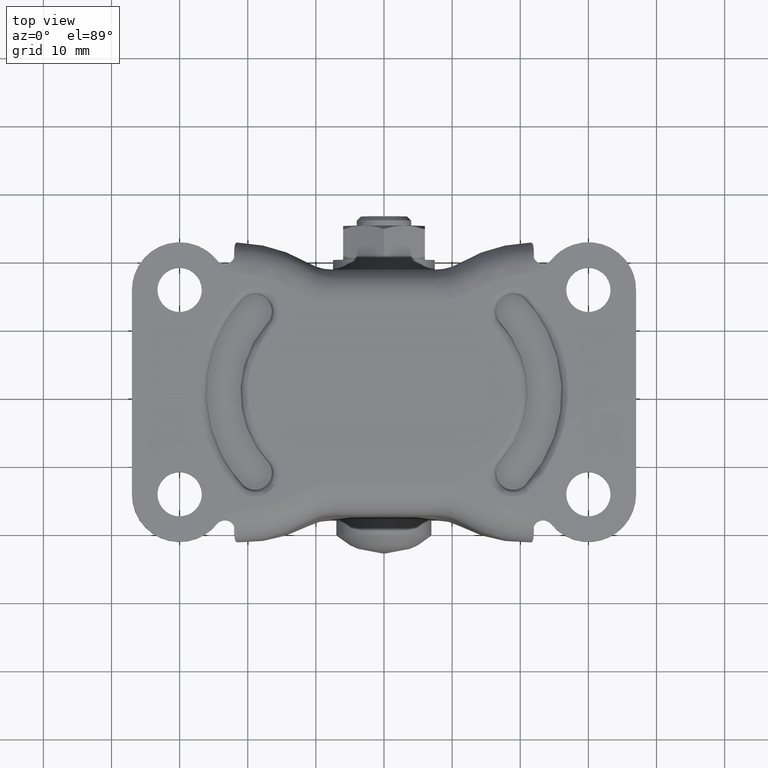
[diagram: clean part render]
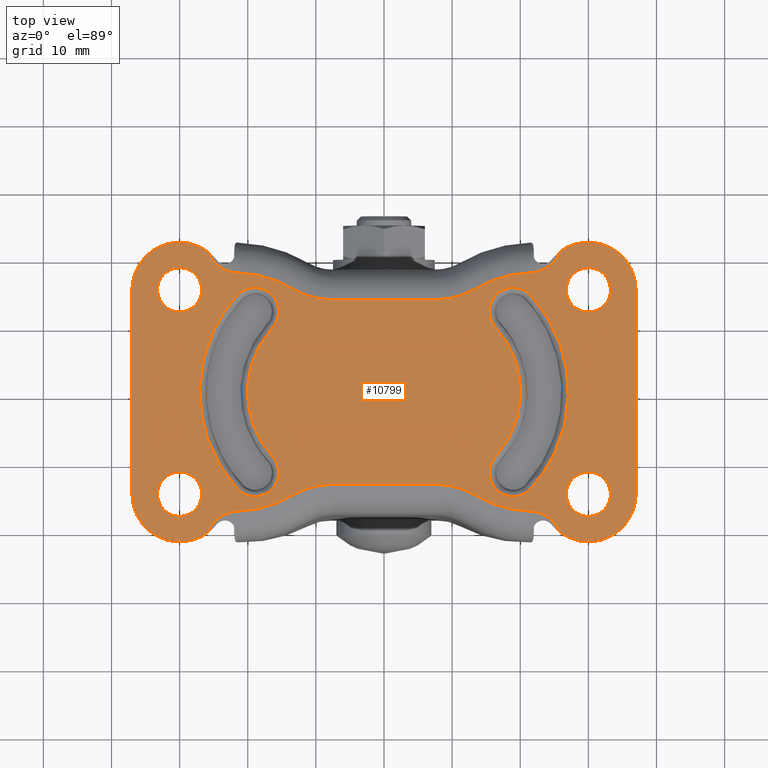
[diagram: same view with one face highlighted and labeled with its STEP entity id]
A machine part, top view. The second image highlights one B-rep face of the part: STEP entity #10799.
In plain terms, the highlighted face is a freeform B-spline surface patch.
Its self-contained STEP definition (entity closure, byte-faithful):
#3071=CARTESIAN_POINT('',(-30.383611262793419,11.772719039336801,-2.484500E-017));
#3072=VERTEX_POINT('',#3071);
#3073=CARTESIAN_POINT('',(-26.750000000000000,14.999999999999821,0.0));
#3074=VERTEX_POINT('',#3073);
#3075=CARTESIAN_POINT('',(-30.383611262793419,11.772719039336794,-2.484500E-017));
#3076=CARTESIAN_POINT('',(-30.192478389029340,11.749999999999824,0.0));
#3077=CARTESIAN_POINT('',(-30.0,11.749999999999821,0.0));
#3078=CARTESIAN_POINT('',(-26.750000000000007,11.749999999999819,0.0));
#3079=CARTESIAN_POINT('',(-26.750000000000000,14.999999999999821,0.0));
#3087=(BOUNDED_CURVE()B_SPLINE_CURVE(2,(#3075,#3076,#3077,#3078,#3079),.UNSPECIFIED.,.F.,.U.)B_SPLINE_CURVE_WITH_KNOTS((3,2,3),(0.229562473498996,0.250000000000000,0.500000000000000),.UNSPECIFIED.)CURVE()GEOMETRIC_REPRESENTATION_ITEM()RATIONAL_B_SPLINE_CURVE((0.956026754155255,0.976055948314143,1.0,0.707106781186547,1.0))REPRESENTATION_ITEM(''));
#3088=EDGE_CURVE('',#3072,#3074,#3087,.T.);
#3090=CARTESIAN_POINT('',(-29.801592246333168,18.243938094859971,-2.081668E-017));
#3091=VERTEX_POINT('',#3090);
#3092=CARTESIAN_POINT('',(-26.750000000000000,14.999999999999821,0.0));
#3093=CARTESIAN_POINT('',(-26.750000000000007,18.057294717106135,0.0));
#3094=CARTESIAN_POINT('',(-29.801592246333161,18.243938094859974,-2.081668E-017));
#3102=(BOUNDED_CURVE()B_SPLINE_CURVE(2,(#3092,#3093,#3094),.UNSPECIFIED.,.F.,.U.)B_SPLINE_CURVE_WITH_KNOTS((3,3),(0.500000000000000,0.739332962222973),.UNSPECIFIED.)CURVE()GEOMETRIC_REPRESENTATION_ITEM()RATIONAL_B_SPLINE_CURVE((1.0,0.719603993305420,0.976072041632492))REPRESENTATION_ITEM(''));
#3103=EDGE_CURVE('',#3074,#3091,#3102,.T.);
#3170=CARTESIAN_POINT('',(-33.250000000000000,14.999999999999821,0.0));
#3171=VERTEX_POINT('',#3170);
#3172=CARTESIAN_POINT('',(-33.250000000000000,14.999999999999821,0.0));
#3173=CARTESIAN_POINT('',(-33.250000000000007,12.113432790944220,0.0));
#3174=CARTESIAN_POINT('',(-30.383611262793416,11.772719039336803,-2.484500E-017));
#3182=(BOUNDED_CURVE()B_SPLINE_CURVE(2,(#3172,#3173,#3174),.UNSPECIFIED.,.F.,.U.)B_SPLINE_CURVE_WITH_KNOTS((3,3),(0.0,0.229562473498997),.UNSPECIFIED.)CURVE()GEOMETRIC_REPRESENTATION_ITEM()RATIONAL_B_SPLINE_CURVE((1.0,0.731050832872404,0.956026754155255))REPRESENTATION_ITEM(''));
#3183=EDGE_CURVE('',#3171,#3072,#3182,.T.);
#3217=CARTESIAN_POINT('',(-29.801592246333165,18.243938094859967,-2.081668E-017));
#3218=CARTESIAN_POINT('',(-29.900703519100531,18.249999999999826,0.0));
#3219=CARTESIAN_POINT('',(-30.0,18.249999999999819,0.0));
#3220=CARTESIAN_POINT('',(-33.249999999999993,18.249999999999826,0.0));
#3221=CARTESIAN_POINT('',(-33.250000000000000,14.999999999999821,0.0));
#3229=(BOUNDED_CURVE()B_SPLINE_CURVE(2,(#3217,#3218,#3219,#3220,#3221),.UNSPECIFIED.,.F.,.U.)B_SPLINE_CURVE_WITH_KNOTS((3,2,3),(0.739332962222974,0.750000000000000,1.0),.UNSPECIFIED.)CURVE()GEOMETRIC_REPRESENTATION_ITEM()RATIONAL_B_SPLINE_CURVE((0.976072041632493,0.987502787881128,1.0,0.707106781186547,1.0))REPRESENTATION_ITEM(''));
#3230=EDGE_CURVE('',#3091,#3171,#3229,.T.);
#3257=CARTESIAN_POINT('',(-30.383611262793419,-18.227280960663020,-2.484500E-017));
#3258=VERTEX_POINT('',#3257);
#3259=CARTESIAN_POINT('',(-26.750000000000000,-15.0,0.0));
#3260=VERTEX_POINT('',#3259);
#3261=CARTESIAN_POINT('',(-30.383611262793419,-18.227280960663016,-2.484500E-017));
#3262=CARTESIAN_POINT('',(-30.192478389029347,-18.250000000000000,0.0));
#3263=CARTESIAN_POINT('',(-30.0,-18.250000000000000,0.0));
#3264=CARTESIAN_POINT('',(-26.750000000000007,-18.250000000000000,0.0));
#3265=CARTESIAN_POINT('',(-26.750000000000000,-15.0,0.0));
#3273=(BOUNDED_CURVE()B_SPLINE_CURVE(2,(#3261,#3262,#3263,#3264,#3265),.UNSPECIFIED.,.F.,.U.)B_SPLINE_CURVE_WITH_KNOTS((3,2,3),(0.229562473498996,0.250000000000000,0.500000000000000),.UNSPECIFIED.)CURVE()GEOMETRIC_REPRESENTATION_ITEM()RATIONAL_B_SPLINE_CURVE((0.956026754155255,0.976055948314143,1.0,0.707106781186547,1.0))REPRESENTATION_ITEM(''));
#3274=EDGE_CURVE('',#3258,#3260,#3273,.T.);
#3276=CARTESIAN_POINT('',(-29.801592246333168,-11.756061905139861,-2.081668E-017));
#3277=VERTEX_POINT('',#3276);
#3278=CARTESIAN_POINT('',(-26.750000000000000,-15.0,0.0));
#3279=CARTESIAN_POINT('',(-26.750000000000007,-11.942705282893685,0.0));
#3280=CARTESIAN_POINT('',(-29.801592246333161,-11.756061905139855,-2.081668E-017));
#3288=(BOUNDED_CURVE()B_SPLINE_CURVE(2,(#3278,#3279,#3280),.UNSPECIFIED.,.F.,.U.)B_SPLINE_CURVE_WITH_KNOTS((3,3),(0.500000000000000,0.739332962222973),.UNSPECIFIED.)CURVE()GEOMETRIC_REPRESENTATION_ITEM()RATIONAL_B_SPLINE_CURVE((1.0,0.719603993305420,0.976072041632492))REPRESENTATION_ITEM(''));
#3289=EDGE_CURVE('',#3260,#3277,#3288,.T.);
#3356=CARTESIAN_POINT('',(-33.250000000000000,-15.0,0.0));
#3357=VERTEX_POINT('',#3356);
#3358=CARTESIAN_POINT('',(-33.250000000000000,-15.0,0.0));
#3359=CARTESIAN_POINT('',(-33.250000000000000,-17.886567209055592,0.0));
#3360=CARTESIAN_POINT('',(-30.383611262793426,-18.227280960663020,-2.484500E-017));
#3368=(BOUNDED_CURVE()B_SPLINE_CURVE(2,(#3358,#3359,#3360),.UNSPECIFIED.,.F.,.U.)B_SPLINE_CURVE_WITH_KNOTS((3,3),(0.0,0.229562473498996),.UNSPECIFIED.)CURVE()GEOMETRIC_REPRESENTATION_ITEM()RATIONAL_B_SPLINE_CURVE((1.0,0.731050832872405,0.956026754155255))REPRESENTATION_ITEM(''));
#3369=EDGE_CURVE('',#3357,#3258,#3368,.T.);
#3403=CARTESIAN_POINT('',(-29.801592246333165,-11.756061905139854,-2.081668E-017));
#3404=CARTESIAN_POINT('',(-29.900703519100531,-11.750000000000002,0.0));
#3405=CARTESIAN_POINT('',(-30.0,-11.750000000000000,0.0));
#3406=CARTESIAN_POINT('',(-33.249999999999993,-11.750000000000004,0.0));
#3407=CARTESIAN_POINT('',(-33.250000000000000,-15.0,0.0));
#3415=(BOUNDED_CURVE()B_SPLINE_CURVE(2,(#3403,#3404,#3405,#3406,#3407),.UNSPECIFIED.,.F.,.U.)B_SPLINE_CURVE_WITH_KNOTS((3,2,3),(0.739332962222974,0.750000000000000,1.0),.UNSPECIFIED.)CURVE()GEOMETRIC_REPRESENTATION_ITEM()RATIONAL_B_SPLINE_CURVE((0.976072041632493,0.987502787881128,1.0,0.707106781186547,1.0))REPRESENTATION_ITEM(''));
#3416=EDGE_CURVE('',#3277,#3357,#3415,.T.);
#3443=CARTESIAN_POINT('',(29.616388737206581,11.772719039336801,-2.484500E-017));
#3444=VERTEX_POINT('',#3443);
#3445=CARTESIAN_POINT('',(33.250000000000000,14.999999999999821,0.0));
#3446=VERTEX_POINT('',#3445);
#3447=CARTESIAN_POINT('',(29.616388737206584,11.772719039336794,-2.484500E-017));
#3448=CARTESIAN_POINT('',(29.807521610970657,11.749999999999824,0.0));
#3449=CARTESIAN_POINT('',(30.0,11.749999999999821,0.0));
#3450=CARTESIAN_POINT('',(33.249999999999993,11.749999999999819,0.0));
#3451=CARTESIAN_POINT('',(33.250000000000000,14.999999999999821,0.0));
#3459=(BOUNDED_CURVE()B_SPLINE_CURVE(2,(#3447,#3448,#3449,#3450,#3451),.UNSPECIFIED.,.F.,.U.)B_SPLINE_CURVE_WITH_KNOTS((3,2,3),(0.229562473498996,0.250000000000000,0.500000000000000),.UNSPECIFIED.)CURVE()GEOMETRIC_REPRESENTATION_ITEM()RATIONAL_B_SPLINE_CURVE((0.956026754155255,0.976055948314143,1.0,0.707106781186547,1.0))REPRESENTATION_ITEM(''));
#3460=EDGE_CURVE('',#3444,#3446,#3459,.T.);
#3462=CARTESIAN_POINT('',(30.198407753666839,18.243938094859971,-2.081668E-017));
#3463=VERTEX_POINT('',#3462);
#3464=CARTESIAN_POINT('',(33.250000000000000,14.999999999999821,0.0));
#3465=CARTESIAN_POINT('',(33.250000000000000,18.057294717106135,0.0));
#3466=CARTESIAN_POINT('',(30.198407753666832,18.243938094859963,-2.081668E-017));
#3474=(BOUNDED_CURVE()B_SPLINE_CURVE(2,(#3464,#3465,#3466),.UNSPECIFIED.,.F.,.U.)B_SPLINE_CURVE_WITH_KNOTS((3,3),(0.500000000000000,0.739332962222973),.UNSPECIFIED.)CURVE()GEOMETRIC_REPRESENTATION_ITEM()RATIONAL_B_SPLINE_CURVE((1.0,0.719603993305420,0.976072041632492))REPRESENTATION_ITEM(''));
#3475=EDGE_CURVE('',#3446,#3463,#3474,.T.);
#3542=CARTESIAN_POINT('',(26.750000000000000,14.999999999999821,0.0));
#3543=VERTEX_POINT('',#3542);
#3544=CARTESIAN_POINT('',(26.750000000000000,14.999999999999821,0.0));
#3545=CARTESIAN_POINT('',(26.749999999999993,12.113432790944220,0.0));
#3546=CARTESIAN_POINT('',(29.616388737206581,11.772719039336804,-2.484500E-017));
#3554=(BOUNDED_CURVE()B_SPLINE_CURVE(2,(#3544,#3545,#3546),.UNSPECIFIED.,.F.,.U.)B_SPLINE_CURVE_WITH_KNOTS((3,3),(0.0,0.229562473498996),.UNSPECIFIED.)CURVE()GEOMETRIC_REPRESENTATION_ITEM()RATIONAL_B_SPLINE_CURVE((1.0,0.731050832872404,0.956026754155255))REPRESENTATION_ITEM(''));
#3555=EDGE_CURVE('',#3543,#3444,#3554,.T.);
#3589=CARTESIAN_POINT('',(30.198407753666832,18.243938094859971,-2.081668E-017));
#3590=CARTESIAN_POINT('',(30.099296480899472,18.249999999999815,0.0));
#3591=CARTESIAN_POINT('',(30.0,18.249999999999819,0.0));
#3592=CARTESIAN_POINT('',(26.750000000000007,18.249999999999826,0.0));
#3593=CARTESIAN_POINT('',(26.750000000000000,14.999999999999821,0.0));
#3601=(BOUNDED_CURVE()B_SPLINE_CURVE(2,(#3589,#3590,#3591,#3592,#3593),.UNSPECIFIED.,.F.,.U.)B_SPLINE_CURVE_WITH_KNOTS((3,2,3),(0.739332962222974,0.750000000000000,1.0),.UNSPECIFIED.)CURVE()GEOMETRIC_REPRESENTATION_ITEM()RATIONAL_B_SPLINE_CURVE((0.976072041632493,0.987502787881128,1.0,0.707106781186547,1.0))REPRESENTATION_ITEM(''));
#3602=EDGE_CURVE('',#3463,#3543,#3601,.T.);
#3629=CARTESIAN_POINT('',(29.616388737206581,-18.227280960663020,-2.484500E-017));
#3630=VERTEX_POINT('',#3629);
#3631=CARTESIAN_POINT('',(33.250000000000000,-15.0,0.0));
#3632=VERTEX_POINT('',#3631);
#3633=CARTESIAN_POINT('',(29.616388737206581,-18.227280960663023,-2.484500E-017));
#3634=CARTESIAN_POINT('',(29.807521610970660,-18.249999999999996,0.0));
#3635=CARTESIAN_POINT('',(30.0,-18.250000000000000,0.0));
#3636=CARTESIAN_POINT('',(33.249999999999993,-18.250000000000000,0.0));
#3637=CARTESIAN_POINT('',(33.250000000000000,-15.0,0.0));
#3645=(BOUNDED_CURVE()B_SPLINE_CURVE(2,(#3633,#3634,#3635,#3636,#3637),.UNSPECIFIED.,.F.,.U.)B_SPLINE_CURVE_WITH_KNOTS((3,2,3),(0.229562473498996,0.250000000000000,0.500000000000000),.UNSPECIFIED.)CURVE()GEOMETRIC_REPRESENTATION_ITEM()RATIONAL_B_SPLINE_CURVE((0.956026754155255,0.976055948314143,1.0,0.707106781186547,1.0))REPRESENTATION_ITEM(''));
#3646=EDGE_CURVE('',#3630,#3632,#3645,.T.);
#3648=CARTESIAN_POINT('',(30.198407753666839,-11.756061905139850,-2.081668E-017));
#3649=VERTEX_POINT('',#3648);
#3650=CARTESIAN_POINT('',(33.250000000000000,-15.0,0.0));
#3651=CARTESIAN_POINT('',(33.250000000000000,-11.942705282893685,0.0));
#3652=CARTESIAN_POINT('',(30.198407753666832,-11.756061905139855,-2.081668E-017));
#3660=(BOUNDED_CURVE()B_SPLINE_CURVE(2,(#3650,#3651,#3652),.UNSPECIFIED.,.F.,.U.)B_SPLINE_CURVE_WITH_KNOTS((3,3),(0.500000000000000,0.739332962222973),.UNSPECIFIED.)CURVE()GEOMETRIC_REPRESENTATION_ITEM()RATIONAL_B_SPLINE_CURVE((1.0,0.719603993305420,0.976072041632492))REPRESENTATION_ITEM(''));
#3661=EDGE_CURVE('',#3632,#3649,#3660,.T.);
#3728=CARTESIAN_POINT('',(26.750000000000000,-15.0,0.0));
#3729=VERTEX_POINT('',#3728);
#3730=CARTESIAN_POINT('',(26.750000000000000,-15.0,0.0));
#3731=CARTESIAN_POINT('',(26.749999999999993,-17.886567209055599,0.0));
#3732=CARTESIAN_POINT('',(29.616388737206584,-18.227280960663023,-2.484500E-017));
#3740=(BOUNDED_CURVE()B_SPLINE_CURVE(2,(#3730,#3731,#3732),.UNSPECIFIED.,.F.,.U.)B_SPLINE_CURVE_WITH_KNOTS((3,3),(0.0,0.229562473498996),.UNSPECIFIED.)CURVE()GEOMETRIC_REPRESENTATION_ITEM()RATIONAL_B_SPLINE_CURVE((1.0,0.731050832872404,0.956026754155255))REPRESENTATION_ITEM(''));
#3741=EDGE_CURVE('',#3729,#3630,#3740,.T.);
#3775=CARTESIAN_POINT('',(30.198407753666832,-11.756061905139855,-2.081668E-017));
#3776=CARTESIAN_POINT('',(30.099296480899472,-11.750000000000004,0.0));
#3777=CARTESIAN_POINT('',(30.0,-11.750000000000000,0.0));
#3778=CARTESIAN_POINT('',(26.750000000000007,-11.750000000000004,0.0));
#3779=CARTESIAN_POINT('',(26.750000000000000,-15.0,0.0));
#3787=(BOUNDED_CURVE()B_SPLINE_CURVE(2,(#3775,#3776,#3777,#3778,#3779),.UNSPECIFIED.,.F.,.U.)B_SPLINE_CURVE_WITH_KNOTS((3,2,3),(0.739332962222974,0.750000000000000,1.0),.UNSPECIFIED.)CURVE()GEOMETRIC_REPRESENTATION_ITEM()RATIONAL_B_SPLINE_CURVE((0.976072041632493,0.987502787881128,1.0,0.707106781186547,1.0))REPRESENTATION_ITEM(''));
#3788=EDGE_CURVE('',#3649,#3729,#3787,.T.);
#6193=CARTESIAN_POINT('',(-25.811329888295749,20.608479535071201,0.0));
#6194=VERTEX_POINT('',#6193);
#6208=CARTESIAN_POINT('',(-21.484265850218950,17.492088912298900,0.0));
#6209=VERTEX_POINT('',#6208);
#6210=CARTESIAN_POINT('',(-21.484265850218950,17.492088912298900,0.0));
#6211=CARTESIAN_POINT('',(-21.603383213129010,17.495743704170309,0.0));
#6212=CARTESIAN_POINT('',(-21.722158548124909,17.503726703638581,0.0));
#6213=CARTESIAN_POINT('',(-21.959026405725790,17.528333382634109,0.0));
#6214=CARTESIAN_POINT('',(-22.077092583931659,17.544984488697281,0.0));
#6215=CARTESIAN_POINT('',(-22.426547924071730,17.607248886891320,0.0));
#6216=CARTESIAN_POINT('',(-22.654490383674279,17.665208486618280,0.0));
#6217=CARTESIAN_POINT('',(-23.100443050177020,17.813624331418350,0.0));
#6218=CARTESIAN_POINT('',(-23.318518422526392,17.904103882154502,0.0));
#6219=CARTESIAN_POINT('',(-23.743908252633570,18.119320720896820,0.0));
#6220=CARTESIAN_POINT('',(-23.945852131464530,18.241335012722860,0.0));
#6221=CARTESIAN_POINT('',(-24.328809851242990,18.513408842431360,0.0));
#6222=CARTESIAN_POINT('',(-24.509825656312628,18.663465748484452,0.0));
#6223=CARTESIAN_POINT('',(-24.722437996194909,18.869337163501420,0.0));
#6224=CARTESIAN_POINT('',(-24.764273718392921,18.911431652881980,0.0));
#6225=CARTESIAN_POINT('',(-24.846540707122859,18.997502534817350,0.0));
#6226=CARTESIAN_POINT('',(-24.886905566092359,19.041417946322468,0.0));
#6227=CARTESIAN_POINT('',(-25.004800353540158,19.174808146622329,0.0));
#6228=CARTESIAN_POINT('',(-25.079486635391621,19.266286797667259,0.0));
#6229=CARTESIAN_POINT('',(-25.291991180504471,19.548263164655431,0.0));
#6230=CARTESIAN_POINT('',(-25.418324794318519,19.746255839746791,0.0));
#6231=CARTESIAN_POINT('',(-25.584271886973191,20.058615912029079,0.0));
#6232=CARTESIAN_POINT('',(-25.635645089158231,20.165308835004360,0.0));
#6233=CARTESIAN_POINT('',(-25.730187854273488,20.384048430876700,0.0));
#6234=CARTESIAN_POINT('',(-25.773072197983112,20.495473449877331,0.0));
#6235=CARTESIAN_POINT('',(-25.811329888295749,20.608479535071201,0.0));
#6236=B_SPLINE_CURVE_WITH_KNOTS('',3,(#6210,#6211,#6212,#6213,#6214,#6215,#6216,#6217,#6218,#6219,#6220,#6221,#6222,#6223,#6224,#6225,#6226,#6227,#6228,#6229,#6230,#6231,#6232,#6233,#6234,#6235),.UNSPECIFIED.,.F.,.U.,(4,2,2,2,2,2,2,2,2,2,2,2,4),(0.0,0.062499999999999,0.124999999999998,0.249999999999997,0.374999999999996,0.499999999999996,0.624999999999995,0.656249999999995,0.687499999999995,0.749999999999997,0.875000000000000,0.937500000000000,1.0),.UNSPECIFIED.);
#6237=EDGE_CURVE('',#6209,#6194,#6236,.T.);
#6362=CARTESIAN_POINT('',(-13.418852226916959,15.145858966433151,0.0));
#6363=VERTEX_POINT('',#6362);
#6393=CARTESIAN_POINT('',(-13.418852226916959,15.145858966433151,0.0));
#6394=CARTESIAN_POINT('',(-17.148994104475438,17.359072905651573,0.0));
#6395=CARTESIAN_POINT('',(-21.484265850218950,17.492088912298929,0.0));
#6403=(BOUNDED_CURVE()B_SPLINE_CURVE(2,(#6393,#6394,#6395),.UNSPECIFIED.,.F.,.U.)CURVE()GEOMETRIC_REPRESENTATION_ITEM()QUASI_UNIFORM_CURVE()RATIONAL_B_SPLINE_CURVE((1.0,0.968312146698987,1.0))REPRESENTATION_ITEM(''));
#6404=EDGE_CURVE('',#6363,#6209,#6403,.T.);
#6426=CARTESIAN_POINT('',(-7.601734732925700,13.550000000000001,0.0));
#6427=VERTEX_POINT('',#6426);
#6457=CARTESIAN_POINT('',(-7.601734732925700,13.550000000000001,0.0));
#6458=CARTESIAN_POINT('',(-10.729196454978963,13.549999119394657,0.0));
#6459=CARTESIAN_POINT('',(-13.418852226916970,15.145858966433151,0.0));
#6467=(BOUNDED_CURVE()B_SPLINE_CURVE(2,(#6457,#6458,#6459),.UNSPECIFIED.,.F.,.U.)CURVE()GEOMETRIC_REPRESENTATION_ITEM()QUASI_UNIFORM_CURVE()RATIONAL_B_SPLINE_CURVE((1.0,0.964368245974227,1.0))REPRESENTATION_ITEM(''));
#6468=EDGE_CURVE('',#6427,#6363,#6467,.T.);
#6487=CARTESIAN_POINT('',(7.601737942846899,13.550000000000001,0.0));
#6488=VERTEX_POINT('',#6487);
#6510=CARTESIAN_POINT('',(7.601737942846899,13.550000000000001,0.0));
#6511=CARTESIAN_POINT('',(-7.601734732925700,13.550000000000001,0.0));
#6512=QUASI_UNIFORM_CURVE('',1,(#6510,#6511),.UNSPECIFIED.,.F.,.U.);
#6513=EDGE_CURVE('',#6488,#6427,#6512,.T.);
#6535=CARTESIAN_POINT('',(13.418852226916821,15.145858966433151,0.0));
#6536=VERTEX_POINT('',#6535);
#6566=CARTESIAN_POINT('',(13.418852226916830,15.145858966433130,0.0));
#6567=CARTESIAN_POINT('',(10.729197939147538,13.549999999999999,0.0));
#6568=CARTESIAN_POINT('',(7.601737942846899,13.550000000000001,0.0));
#6576=(BOUNDED_CURVE()B_SPLINE_CURVE(2,(#6566,#6567,#6568),.UNSPECIFIED.,.F.,.U.)CURVE()GEOMETRIC_REPRESENTATION_ITEM()QUASI_UNIFORM_CURVE()RATIONAL_B_SPLINE_CURVE((1.0,0.964368283221072,1.0))REPRESENTATION_ITEM(''));
#6577=EDGE_CURVE('',#6536,#6488,#6576,.T.);
#6599=CARTESIAN_POINT('',(21.484266556458799,17.492088933967949,0.0));
#6600=VERTEX_POINT('',#6599);
#6630=CARTESIAN_POINT('',(21.484266556458810,17.492088933967960,0.0));
#6631=CARTESIAN_POINT('',(17.148994428516772,17.359073097915818,0.0));
#6632=CARTESIAN_POINT('',(13.418852226916830,15.145858966433151,0.0));
#6640=(BOUNDED_CURVE()B_SPLINE_CURVE(2,(#6630,#6631,#6632),.UNSPECIFIED.,.F.,.U.)CURVE()GEOMETRIC_REPRESENTATION_ITEM()QUASI_UNIFORM_CURVE()RATIONAL_B_SPLINE_CURVE((1.0,0.968312141452394,1.0))REPRESENTATION_ITEM(''));
#6641=EDGE_CURVE('',#6600,#6536,#6640,.T.);
#6791=CARTESIAN_POINT('',(25.811331118543048,20.608480453876250,0.0));
#6792=VERTEX_POINT('',#6791);
#6793=CARTESIAN_POINT('',(25.811331118543048,20.608480453876250,0.0));
#6794=CARTESIAN_POINT('',(25.734876977442362,20.382649012749368,0.0));
#6795=CARTESIAN_POINT('',(25.641106915643711,20.166089080188339,0.0));
#6796=CARTESIAN_POINT('',(25.420880339941942,19.750578404918659,0.0));
#6797=CARTESIAN_POINT('',(25.294410312498130,19.551616285075340,0.0));
#6798=CARTESIAN_POINT('',(25.115537968417339,19.314087338812651,0.0));
#6799=CARTESIAN_POINT('',(25.078723926748921,19.267161662336310,0.0));
#6800=CARTESIAN_POINT('',(25.003649805187312,19.175234823182180,0.0));
#6801=CARTESIAN_POINT('',(24.965313191825921,19.130129615385140,0.0));
#6802=CARTESIAN_POINT('',(24.847949080114962,18.997340984830480,0.0));
#6803=CARTESIAN_POINT('',(24.766570856343151,18.912180748537359,0.0));
#6804=CARTESIAN_POINT('',(24.513248478083661,18.666561803001930,0.0));
#6805=CARTESIAN_POINT('',(24.332169380936271,18.515908221766001,0.0));
#6806=CARTESIAN_POINT('',(24.090479523084781,18.344057723574419,0.0));
#6807=CARTESIAN_POINT('',(24.041275612655689,18.310454353578699,0.0));
#6808=CARTESIAN_POINT('',(23.941788957687649,18.245237458435010,0.0));
#6809=CARTESIAN_POINT('',(23.891575919974059,18.213663554685720,0.0));
#6810=CARTESIAN_POINT('',(23.739555270228198,18.121984698522461,0.0));
#6811=CARTESIAN_POINT('',(23.636368179054841,18.064918069597869,0.0));
#6812=CARTESIAN_POINT('',(23.321428206761141,17.905564847510441,0.0));
#6813=CARTESIAN_POINT('',(23.104326609287799,17.815058882302889,0.0));
#6814=CARTESIAN_POINT('',(22.824019945166871,17.721594151849452,0.0));
#6815=CARTESIAN_POINT('',(22.767509731892410,17.703889871680090,0.0));
#6816=CARTESIAN_POINT('',(22.653581710271371,17.670480303094401,0.0));
#6817=CARTESIAN_POINT('',(22.596074910321398,17.654754681873420,0.0));
#6818=CARTESIAN_POINT('',(22.423231268830211,17.610877843354650,0.0));
#6819=CARTESIAN_POINT('',(22.307360042902008,17.585945270539948,0.0));
#6820=CARTESIAN_POINT('',(21.957853867196420,17.523875537383930,0.0));
#6821=CARTESIAN_POINT('',(21.722337256960952,17.499393475028409,0.0));
#6822=CARTESIAN_POINT('',(21.484266556458799,17.492088933967949,0.0));
#6823=B_SPLINE_CURVE_WITH_KNOTS('',3,(#6793,#6794,#6795,#6796,#6797,#6798,#6799,#6800,#6801,#6802,#6803,#6804,#6805,#6806,#6807,#6808,#6809,#6810,#6811,#6812,#6813,#6814,#6815,#6816,#6817,#6818,#6819,#6820,#6821,#6822),.UNSPECIFIED.,.F.,.U.,(4,2,2,2,2,2,2,2,2,2,2,2,2,2,4),(0.0,0.124999999999998,0.249999999999996,0.281249999999996,0.312499999999996,0.374999999999997,0.499999999999996,0.531249999999995,0.562499999999995,0.624999999999994,0.749999999999993,0.781249999999994,0.812499999999994,0.874999999999995,1.0),.UNSPECIFIED.);
#6824=EDGE_CURVE('',#6792,#6600,#6823,.T.);
#6971=CARTESIAN_POINT('',(25.811331118543048,-20.608480453876250,0.0));
#6972=VERTEX_POINT('',#6971);
#6986=CARTESIAN_POINT('',(21.484266556458799,-17.492088933967949,0.0));
#6987=VERTEX_POINT('',#6986);
#6988=CARTESIAN_POINT('',(21.484266556458799,-17.492088933967949,0.0));
#6989=CARTESIAN_POINT('',(21.603383943726929,-17.495743721577171,0.0));
#6990=CARTESIAN_POINT('',(21.722159303134479,-17.503726718498140,0.0));
#6991=CARTESIAN_POINT('',(21.959027209664480,-17.528333395837560,0.0));
#6992=CARTESIAN_POINT('',(22.077093411812161,-17.544984502735652,0.0));
#6993=CARTESIAN_POINT('',(22.426548822570378,-17.607248908321541,0.0));
#6994=CARTESIAN_POINT('',(22.654491328067870,-17.665208519481642,0.0));
#6995=CARTESIAN_POINT('',(23.100444083825561,-17.813624400641419,0.0));
#6996=CARTESIAN_POINT('',(23.318519505974098,-17.904103979549479,0.0));
#6997=CARTESIAN_POINT('',(23.743909406537679,-18.119320877380790,0.0));
#6998=CARTESIAN_POINT('',(23.945853317371650,-18.241335204384431,0.0));
#6999=CARTESIAN_POINT('',(24.328811093924099,-18.513409116691889,0.0));
#7000=CARTESIAN_POINT('',(24.509826923781059,-18.663466070144182,0.0));
#7001=CARTESIAN_POINT('',(24.722439288928790,-18.869337553738941,0.0));
#7002=CARTESIAN_POINT('',(24.764275015890259,-18.911432057306950,0.0));
#7003=CARTESIAN_POINT('',(24.846542013520210,-18.997502968628542,0.0));
#7004=CARTESIAN_POINT('',(24.886906873620092,-19.041418392077119,0.0));
#7005=CARTESIAN_POINT('',(25.004801665520631,-19.174808630917539,0.0));
#7006=CARTESIAN_POINT('',(25.079487949067769,-19.266287308717420,0.0));
#7007=CARTESIAN_POINT('',(25.291992495058700,-19.548263759398719,0.0));
#7008=CARTESIAN_POINT('',(25.418326103914250,-19.746256494807980,0.0));
#7009=CARTESIAN_POINT('',(25.584273178278210,-20.058616666038919,0.0));
#7010=CARTESIAN_POINT('',(25.635646372542919,-20.165309623419571,0.0));
#7011=CARTESIAN_POINT('',(25.730189117493509,-20.384049291408420,0.0));
#7012=CARTESIAN_POINT('',(25.773073444899939,-20.495474337417420,0.0));
#7013=CARTESIAN_POINT('',(25.811331118543048,-20.608480453876250,0.0));
#7014=B_SPLINE_CURVE_WITH_KNOTS('',3,(#6988,#6989,#6990,#6991,#6992,#6993,#6994,#6995,#6996,#6997,#6998,#6999,#7000,#7001,#7002,#7003,#7004,#7005,#7006,#7007,#7008,#7009,#7010,#7011,#7012,#7013),.UNSPECIFIED.,.F.,.U.,(4,2,2,2,2,2,2,2,2,2,2,2,4),(0.0,0.062500000000000,0.125000000000001,0.250000000000000,0.374999999999999,0.499999999999998,0.624999999999996,0.656249999999996,0.687499999999995,0.749999999999996,0.874999999999998,0.937499999999999,1.0),.UNSPECIFIED.);
#7015=EDGE_CURVE('',#6987,#6972,#7014,.T.);
#7140=CARTESIAN_POINT('',(13.418852226916860,-15.145858966433151,0.0));
#7141=VERTEX_POINT('',#7140);
#7171=CARTESIAN_POINT('',(13.418852226916851,-15.145858966433160,0.0));
#7172=CARTESIAN_POINT('',(17.148994428516790,-17.359073097915825,0.0));
#7173=CARTESIAN_POINT('',(21.484266556458799,-17.492088933967960,0.0));
#7181=(BOUNDED_CURVE()B_SPLINE_CURVE(2,(#7171,#7172,#7173),.UNSPECIFIED.,.F.,.U.)CURVE()GEOMETRIC_REPRESENTATION_ITEM()QUASI_UNIFORM_CURVE()RATIONAL_B_SPLINE_CURVE((1.0,0.968312141452394,1.0))REPRESENTATION_ITEM(''));
#7182=EDGE_CURVE('',#7141,#6987,#7181,.T.);
#7204=CARTESIAN_POINT('',(7.601734732926101,-13.550000000000001,0.0));
#7205=VERTEX_POINT('',#7204);
#7235=CARTESIAN_POINT('',(7.601734732926101,-13.550000000000001,0.0));
#7236=CARTESIAN_POINT('',(10.729196454979085,-13.549999119394796,0.0));
#7237=CARTESIAN_POINT('',(13.418852226916860,-15.145858966433151,0.0));
#7245=(BOUNDED_CURVE()B_SPLINE_CURVE(2,(#7235,#7236,#7237),.UNSPECIFIED.,.F.,.U.)CURVE()GEOMETRIC_REPRESENTATION_ITEM()QUASI_UNIFORM_CURVE()RATIONAL_B_SPLINE_CURVE((1.0,0.964368245974233,1.0))REPRESENTATION_ITEM(''));
#7246=EDGE_CURVE('',#7205,#7141,#7245,.T.);
#7265=CARTESIAN_POINT('',(-7.601737942847009,-13.550000000000001,0.0));
#7266=VERTEX_POINT('',#7265);
#7288=CARTESIAN_POINT('',(-7.601737942847009,-13.550000000000001,0.0));
#7289=CARTESIAN_POINT('',(7.601734732926101,-13.550000000000001,0.0));
#7290=QUASI_UNIFORM_CURVE('',1,(#7288,#7289),.UNSPECIFIED.,.F.,.U.);
#7291=EDGE_CURVE('',#7266,#7205,#7290,.T.);
#7313=CARTESIAN_POINT('',(-13.418852226916959,-15.145858966433151,0.0));
#7314=VERTEX_POINT('',#7313);
#7344=CARTESIAN_POINT('',(-13.418852226916959,-15.145858966433151,0.0));
#7345=CARTESIAN_POINT('',(-10.729197939147662,-13.550000000000001,0.0));
#7346=CARTESIAN_POINT('',(-7.601737942847009,-13.550000000000001,0.0));
#7354=(BOUNDED_CURVE()B_SPLINE_CURVE(2,(#7344,#7345,#7346),.UNSPECIFIED.,.F.,.U.)CURVE()GEOMETRIC_REPRESENTATION_ITEM()QUASI_UNIFORM_CURVE()RATIONAL_B_SPLINE_CURVE((1.0,0.964368283221071,1.0))REPRESENTATION_ITEM(''));
#7355=EDGE_CURVE('',#7314,#7266,#7354,.T.);
#7377=CARTESIAN_POINT('',(-21.484265850218950,-17.492088912298900,0.0));
#7378=VERTEX_POINT('',#7377);
#7408=CARTESIAN_POINT('',(-21.484265850218950,-17.492088912298929,0.0));
#7409=CARTESIAN_POINT('',(-17.148994104475438,-17.359072905651573,0.0));
#7410=CARTESIAN_POINT('',(-13.418852226916959,-15.145858966433151,0.0));
#7418=(BOUNDED_CURVE()B_SPLINE_CURVE(2,(#7408,#7409,#7410),.UNSPECIFIED.,.F.,.U.)CURVE()GEOMETRIC_REPRESENTATION_ITEM()QUASI_UNIFORM_CURVE()RATIONAL_B_SPLINE_CURVE((1.0,0.968312146698987,1.0))REPRESENTATION_ITEM(''));
#7419=EDGE_CURVE('',#7378,#7314,#7418,.T.);
#7569=CARTESIAN_POINT('',(-25.811329888295749,-20.608479535071250,0.0));
#7570=VERTEX_POINT('',#7569);
#7571=CARTESIAN_POINT('',(-25.811329888295749,-20.608479535071250,0.0));
#7572=CARTESIAN_POINT('',(-25.734875713854318,-20.382648156340611,0.0));
#7573=CARTESIAN_POINT('',(-25.641105634649499,-20.166088300031941,0.0));
#7574=CARTESIAN_POINT('',(-25.420879030768120,-19.750577748485430,0.0));
#7575=CARTESIAN_POINT('',(-25.294408995936649,-19.551615685957540,0.0));
#7576=CARTESIAN_POINT('',(-25.115536649204198,-19.314086806601740,0.0));
#7577=CARTESIAN_POINT('',(-25.078722609707292,-19.267161146312340,0.0));
#7578=CARTESIAN_POINT('',(-25.003648492959591,-19.175234338055461,0.0));
#7579=CARTESIAN_POINT('',(-24.965311882367470,-19.130129145243590,0.0));
#7580=CARTESIAN_POINT('',(-24.847947779971371,-18.997340558344000,0.0));
#7581=CARTESIAN_POINT('',(-24.766569563748771,-18.912180349424268,0.0));
#7582=CARTESIAN_POINT('',(-24.513247211662598,-18.666561481368099,0.0));
#7583=CARTESIAN_POINT('',(-24.332168136628979,-18.515907945640510,0.0));
#7584=CARTESIAN_POINT('',(-24.090478311309472,-18.344057497655331,0.0));
#7585=CARTESIAN_POINT('',(-24.041274407140609,-18.310454137071449,0.0));
#7586=CARTESIAN_POINT('',(-23.941787769692130,-18.245237262911701,0.0));
#7587=CARTESIAN_POINT('',(-23.891574740912670,-18.213663369156659,0.0));
#7588=CARTESIAN_POINT('',(-23.739554118457860,-18.121984541565510,0.0));
#7589=CARTESIAN_POINT('',(-23.636367046128338,-18.064917929812388,0.0));
#7590=CARTESIAN_POINT('',(-23.321427132112831,-17.905564754090310,0.0));
#7591=CARTESIAN_POINT('',(-23.104325575800409,-17.815058812979139,0.0));
#7592=CARTESIAN_POINT('',(-22.824018965707481,-17.721594104809139,0.0));
#7593=CARTESIAN_POINT('',(-22.767508763369111,-17.703889828700390,0.0));
#7594=CARTESIAN_POINT('',(-22.653580763879969,-17.670480267444191,0.0));
#7595=CARTESIAN_POINT('',(-22.596073975387821,-17.654754649569409,0.0));
#7596=CARTESIAN_POINT('',(-22.423230369678219,-17.610877820085719,0.0));
#7597=CARTESIAN_POINT('',(-22.307359167688482,-17.585945251506288,0.0));
#7598=CARTESIAN_POINT('',(-21.957853064023229,-17.523875525940209,0.0));
#7599=CARTESIAN_POINT('',(-21.722336502109201,-17.499393461880022,0.0));
#7600=CARTESIAN_POINT('',(-21.484265850218950,-17.492088912298900,0.0));
#7601=B_SPLINE_CURVE_WITH_KNOTS('',3,(#7571,#7572,#7573,#7574,#7575,#7576,#7577,#7578,#7579,#7580,#7581,#7582,#7583,#7584,#7585,#7586,#7587,#7588,#7589,#7590,#7591,#7592,#7593,#7594,#7595,#7596,#7597,#7598,#7599,#7600),.UNSPECIFIED.,.F.,.U.,(4,2,2,2,2,2,2,2,2,2,2,2,2,2,4),(0.0,0.124999999999999,0.249999999999998,0.281249999999997,0.312499999999996,0.374999999999995,0.499999999999994,0.531249999999993,0.562499999999993,0.624999999999994,0.749999999999997,0.781249999999997,0.812499999999997,0.874999999999997,1.0),.UNSPECIFIED.);
#7602=EDGE_CURVE('',#7570,#7378,#7601,.T.);
#8636=CARTESIAN_POINT('',(21.524005649238550,14.209292445247200,0.0));
#8637=VERTEX_POINT('',#8636);
#8651=CARTESIAN_POINT('',(16.369762432825699,9.472861630164800,0.0));
#8652=VERTEX_POINT('',#8651);
#8653=CARTESIAN_POINT('',(16.369762432825699,9.472861630164800,0.0));
#8654=CARTESIAN_POINT('',(14.001546984252277,12.049983200665141,0.0));
#8655=CARTESIAN_POINT('',(16.578668592458701,14.418198608206341,0.0));
#8656=CARTESIAN_POINT('',(19.155790200665123,16.786414015747546,0.0));
#8657=CARTESIAN_POINT('',(21.524005649238550,14.209292445247200,0.0));
#8665=(BOUNDED_CURVE()B_SPLINE_CURVE(2,(#8653,#8654,#8655,#8656,#8657),.UNSPECIFIED.,.F.,.U.)B_SPLINE_CURVE_WITH_KNOTS((3,2,3),(0.0,0.500000000000000,1.0),.UNSPECIFIED.)CURVE()GEOMETRIC_REPRESENTATION_ITEM()RATIONAL_B_SPLINE_CURVE((1.0,0.707106781186548,1.0,0.707106781186548,1.0))REPRESENTATION_ITEM(''));
#8666=EDGE_CURVE('',#8652,#8637,#8665,.T.);
#8718=CARTESIAN_POINT('',(16.369762345374600,-9.472861642972520,0.0));
#8719=VERTEX_POINT('',#8718);
#8749=CARTESIAN_POINT('',(16.369762345374600,-9.472861642972520,0.0));
#8750=CARTESIAN_POINT('',(25.074736581095831,-0.000000046584941,0.0));
#8751=CARTESIAN_POINT('',(16.369762432825699,9.472861630164795,0.0));
#8759=(BOUNDED_CURVE()B_SPLINE_CURVE(2,(#8749,#8750,#8751),.UNSPECIFIED.,.F.,.U.)CURVE()GEOMETRIC_REPRESENTATION_ITEM()QUASI_UNIFORM_CURVE()RATIONAL_B_SPLINE_CURVE((1.0,0.736320457829730,1.0))REPRESENTATION_ITEM(''));
#8760=EDGE_CURVE('',#8719,#8652,#8759,.T.);
#8784=CARTESIAN_POINT('',(21.524005556400599,-14.209292546274600,0.0));
#8785=VERTEX_POINT('',#8784);
#8801=CARTESIAN_POINT('',(21.524005649238550,14.209292445247200,0.0));
#8802=CARTESIAN_POINT('',(34.581466893048088,-0.000000093169869,0.0));
#8803=CARTESIAN_POINT('',(21.524005556400610,-14.209292546274609,0.0));
#8811=(BOUNDED_CURVE()B_SPLINE_CURVE(2,(#8801,#8802,#8803),.UNSPECIFIED.,.F.,.U.)CURVE()GEOMETRIC_REPRESENTATION_ITEM()QUASI_UNIFORM_CURVE()RATIONAL_B_SPLINE_CURVE((1.0,0.736320457277123,1.0))REPRESENTATION_ITEM(''));
#8812=EDGE_CURVE('',#8637,#8785,#8811,.T.);
#8855=CARTESIAN_POINT('',(21.524005556400599,-14.209292546274600,0.0));
#8856=CARTESIAN_POINT('',(19.155790076428339,-16.786413948166718,0.0));
#8857=CARTESIAN_POINT('',(16.578668567201849,-14.418198584997040,0.0));
#8858=CARTESIAN_POINT('',(14.001547057975369,-12.049983221827363,0.0));
#8859=CARTESIAN_POINT('',(16.369762345374589,-9.472861642972513,0.0));
#8867=(BOUNDED_CURVE()B_SPLINE_CURVE(2,(#8855,#8856,#8857,#8858,#8859),.UNSPECIFIED.,.F.,.U.)B_SPLINE_CURVE_WITH_KNOTS((3,2,3),(0.0,0.500000000000000,1.0),.UNSPECIFIED.)CURVE()GEOMETRIC_REPRESENTATION_ITEM()RATIONAL_B_SPLINE_CURVE((1.0,0.707106791581441,1.0,0.707106791581441,1.0))REPRESENTATION_ITEM(''));
#8868=EDGE_CURVE('',#8785,#8719,#8867,.T.);
#8906=CARTESIAN_POINT('',(-16.369762391793451,9.472861592458729,0.0));
#8907=VERTEX_POINT('',#8906);
#8938=CARTESIAN_POINT('',(-16.369762399530000,-9.472861584039940,0.0));
#8939=VERTEX_POINT('',#8938);
#8953=CARTESIAN_POINT('',(-16.369762391793451,9.472861592458729,0.0));
#8954=CARTESIAN_POINT('',(-25.074736531152475,7.764102E-009,0.0));
#8955=CARTESIAN_POINT('',(-16.369762399530000,-9.472861584039940,0.0));
#8963=(BOUNDED_CURVE()B_SPLINE_CURVE(2,(#8953,#8954,#8955),.UNSPECIFIED.,.F.,.U.)CURVE()GEOMETRIC_REPRESENTATION_ITEM()QUASI_UNIFORM_CURVE()RATIONAL_B_SPLINE_CURVE((1.0,0.736320459763850,1.0))REPRESENTATION_ITEM(''));
#8964=EDGE_CURVE('',#8907,#8939,#8963,.T.);
#8994=CARTESIAN_POINT('',(-21.524005637633699,-14.209292457875719,0.0));
#8995=VERTEX_POINT('',#8994);
#9009=CARTESIAN_POINT('',(-16.369762399529989,-9.472861584039929,0.0));
#9010=CARTESIAN_POINT('',(-14.001546985503936,-12.049983182405111,0.0));
#9011=CARTESIAN_POINT('',(-16.578668581934998,-14.418198598535900,0.0));
#9012=CARTESIAN_POINT('',(-19.155790178366054,-16.786414014666672,0.0));
#9013=CARTESIAN_POINT('',(-21.524005637633699,-14.209292457875719,0.0));
#9021=(BOUNDED_CURVE()B_SPLINE_CURVE(2,(#9009,#9010,#9011,#9012,#9013),.UNSPECIFIED.,.F.,.U.)B_SPLINE_CURVE_WITH_KNOTS((3,2,3),(0.0,0.500000000000000,1.0),.UNSPECIFIED.)CURVE()GEOMETRIC_REPRESENTATION_ITEM()RATIONAL_B_SPLINE_CURVE((1.0,0.707106781475294,1.0,0.707106781475294,1.0))REPRESENTATION_ITEM(''));
#9022=EDGE_CURVE('',#8939,#8995,#9021,.T.);
#9068=CARTESIAN_POINT('',(-21.524005649238550,14.209292445247200,0.0));
#9069=VERTEX_POINT('',#9068);
#9101=CARTESIAN_POINT('',(-21.524005649238550,14.209292445247200,0.0));
#9102=CARTESIAN_POINT('',(-19.155790200665127,16.786414015747539,0.0));
#9103=CARTESIAN_POINT('',(-16.578668592458708,14.418198608206350,0.0));
#9104=CARTESIAN_POINT('',(-14.001546984252288,12.049983200665169,0.0));
#9105=CARTESIAN_POINT('',(-16.369762391793461,9.472861592458738,0.0));
#9113=(BOUNDED_CURVE()B_SPLINE_CURVE(2,(#9101,#9102,#9103,#9104,#9105),.UNSPECIFIED.,.F.,.U.)B_SPLINE_CURVE_WITH_KNOTS((3,2,3),(0.0,0.500000000000000,1.0),.UNSPECIFIED.)CURVE()GEOMETRIC_REPRESENTATION_ITEM()RATIONAL_B_SPLINE_CURVE((1.0,0.707106781186549,1.0,0.707106781186549,1.0))REPRESENTATION_ITEM(''));
#9114=EDGE_CURVE('',#9069,#8907,#9113,.T.);
#9151=CARTESIAN_POINT('',(-21.524005637633710,-14.209292457875740,0.0));
#9152=CARTESIAN_POINT('',(-34.581466818133002,-0.000000011646338,0.0));
#9153=CARTESIAN_POINT('',(-21.524005649238550,14.209292445247200,0.0));
#9161=(BOUNDED_CURVE()B_SPLINE_CURVE(2,(#9151,#9152,#9153),.UNSPECIFIED.,.F.,.U.)CURVE()GEOMETRIC_REPRESENTATION_ITEM()QUASI_UNIFORM_CURVE()RATIONAL_B_SPLINE_CURVE((1.0,0.736320459211244,1.0))REPRESENTATION_ITEM(''));
#9162=EDGE_CURVE('',#8995,#9069,#9161,.T.);
#9789=CARTESIAN_POINT('',(-37.0,-14.999999999999840,0.0));
#9790=VERTEX_POINT('',#9789);
#9791=CARTESIAN_POINT('',(-37.0,-14.999999999999840,0.0));
#9792=CARTESIAN_POINT('',(-37.000000000000007,-19.321350175762543,0.0));
#9793=CARTESIAN_POINT('',(-33.136822374479472,-21.257822735661581,0.0));
#9794=CARTESIAN_POINT('',(-29.273644748958947,-23.194295295560618,0.0));
#9795=CARTESIAN_POINT('',(-25.811329888295720,-20.608479535071289,0.0));
#9803=(BOUNDED_CURVE()B_SPLINE_CURVE(2,(#9791,#9792,#9793,#9794,#9795),.UNSPECIFIED.,.F.,.U.)B_SPLINE_CURVE_WITH_KNOTS((3,2,3),(0.0,0.500000000000000,1.0),.UNSPECIFIED.)CURVE()GEOMETRIC_REPRESENTATION_ITEM()RATIONAL_B_SPLINE_CURVE((1.0,0.850916412483769,1.0,0.850916412483769,1.0))REPRESENTATION_ITEM(''));
#9804=EDGE_CURVE('',#9790,#7570,#9803,.T.);
#9896=CARTESIAN_POINT('',(37.0,-15.0,0.0));
#9897=VERTEX_POINT('',#9896);
#9898=CARTESIAN_POINT('',(25.811331118543041,-20.608480453876261,0.0));
#9899=CARTESIAN_POINT('',(29.273646121642653,-23.194295137648790,0.0));
#9900=CARTESIAN_POINT('',(33.136823060821271,-21.257822391622948,0.0));
#9901=CARTESIAN_POINT('',(37.000000000000007,-19.321349645597067,0.0));
#9902=CARTESIAN_POINT('',(37.0,-15.0,0.0));
#9910=(BOUNDED_CURVE()B_SPLINE_CURVE(2,(#9898,#9899,#9900,#9901,#9902),.UNSPECIFIED.,.F.,.U.)B_SPLINE_CURVE_WITH_KNOTS((3,2,3),(0.0,0.500000000000000,1.0),.UNSPECIFIED.)CURVE()GEOMETRIC_REPRESENTATION_ITEM()RATIONAL_B_SPLINE_CURVE((1.0,0.850916441290609,1.0,0.850916441290609,1.0))REPRESENTATION_ITEM(''));
#9911=EDGE_CURVE('',#6972,#9897,#9910,.T.);
#9945=CARTESIAN_POINT('',(37.0,14.999999999999821,0.0));
#9946=VERTEX_POINT('',#9945);
#9947=CARTESIAN_POINT('',(37.0,14.999999999999821,0.0));
#9948=CARTESIAN_POINT('',(37.0,-15.0,0.0));
#9949=QUASI_UNIFORM_CURVE('',1,(#9947,#9948),.UNSPECIFIED.,.F.,.U.);
#9950=EDGE_CURVE('',#9946,#9897,#9949,.T.);
#9992=CARTESIAN_POINT('',(37.0,14.999999999999821,0.0));
#9993=CARTESIAN_POINT('',(37.000000000000007,19.321349645596992,0.0));
#9994=CARTESIAN_POINT('',(33.136823060821357,21.257822391622909,0.0));
#9995=CARTESIAN_POINT('',(29.273646121642702,23.194295137648830,0.0));
#9996=CARTESIAN_POINT('',(25.811331118543041,20.608480453876268,0.0));
#10004=(BOUNDED_CURVE()B_SPLINE_CURVE(2,(#9992,#9993,#9994,#9995,#9996),.UNSPECIFIED.,.F.,.U.)B_SPLINE_CURVE_WITH_KNOTS((3,2,3),(0.0,0.500000000000000,1.0),.UNSPECIFIED.)CURVE()GEOMETRIC_REPRESENTATION_ITEM()RATIONAL_B_SPLINE_CURVE((1.0,0.850916441290605,1.0,0.850916441290605,1.0))REPRESENTATION_ITEM(''));
#10005=EDGE_CURVE('',#9946,#6792,#10004,.T.);
#10092=CARTESIAN_POINT('',(-37.0,14.999999999999821,0.0));
#10093=VERTEX_POINT('',#10092);
#10094=CARTESIAN_POINT('',(-25.811329888295699,20.608479535071261,0.0));
#10095=CARTESIAN_POINT('',(-29.273644748958919,23.194295295560600,0.0));
#10096=CARTESIAN_POINT('',(-33.136822374479458,21.257822735661570,0.0));
#10097=CARTESIAN_POINT('',(-37.000000000000007,19.321350175762529,0.0));
#10098=CARTESIAN_POINT('',(-37.0,14.999999999999821,0.0));
#10106=(BOUNDED_CURVE()B_SPLINE_CURVE(2,(#10094,#10095,#10096,#10097,#10098),.UNSPECIFIED.,.F.,.U.)B_SPLINE_CURVE_WITH_KNOTS((3,2,3),(0.0,0.500000000000000,1.0),.UNSPECIFIED.)CURVE()GEOMETRIC_REPRESENTATION_ITEM()RATIONAL_B_SPLINE_CURVE((1.0,0.850916412483769,1.0,0.850916412483769,1.0))REPRESENTATION_ITEM(''));
#10107=EDGE_CURVE('',#6194,#10093,#10106,.T.);
#10141=CARTESIAN_POINT('',(-37.0,-14.999999999999840,0.0));
#10142=CARTESIAN_POINT('',(-37.0,14.999999999999821,0.0));
#10143=QUASI_UNIFORM_CURVE('',1,(#10141,#10142),.UNSPECIFIED.,.F.,.U.);
#10144=EDGE_CURVE('',#9790,#10093,#10143,.T.);
#10736=CARTESIAN_POINT('',(-40.696299856573653,24.195901365147972,0.0));
#10737=CARTESIAN_POINT('',(40.696301841408307,24.195901365147972,0.0));
#10738=CARTESIAN_POINT('',(-40.696299856573653,-24.195899809281698,0.0));
#10739=CARTESIAN_POINT('',(40.696301841408307,-24.195899809281698,0.0));
#10740=B_SPLINE_SURFACE_WITH_KNOTS('',1,1,((#10736,#10738),(#10737,#10739)),.UNSPECIFIED.,.F.,.F.,.U.,(2,2),(2,2),(0.0,81.392601697981959),(0.0,48.391801174429659),.UNSPECIFIED.);
#10741=ORIENTED_EDGE('',*,*,#7182,.T.);
#10742=ORIENTED_EDGE('',*,*,#7015,.T.);
#10743=ORIENTED_EDGE('',*,*,#9911,.T.);
#10744=ORIENTED_EDGE('',*,*,#9950,.F.);
#10745=ORIENTED_EDGE('',*,*,#10005,.T.);
#10746=ORIENTED_EDGE('',*,*,#6824,.T.);
#10747=ORIENTED_EDGE('',*,*,#6641,.T.);
#10748=ORIENTED_EDGE('',*,*,#6577,.T.);
#10749=ORIENTED_EDGE('',*,*,#6513,.T.);
#10750=ORIENTED_EDGE('',*,*,#6468,.T.);
#10751=ORIENTED_EDGE('',*,*,#6404,.T.);
#10752=ORIENTED_EDGE('',*,*,#6237,.T.);
#10753=ORIENTED_EDGE('',*,*,#10107,.T.);
#10754=ORIENTED_EDGE('',*,*,#10144,.F.);
#10755=ORIENTED_EDGE('',*,*,#9804,.T.);
#10756=ORIENTED_EDGE('',*,*,#7602,.T.);
#10757=ORIENTED_EDGE('',*,*,#7419,.T.);
#10758=ORIENTED_EDGE('',*,*,#7355,.T.);
#10759=ORIENTED_EDGE('',*,*,#7291,.T.);
#10760=ORIENTED_EDGE('',*,*,#7246,.T.);
#10761=EDGE_LOOP('',(#10741,#10742,#10743,#10744,#10745,#10746,#10747,#10748,#10749,#10750,#10751,#10752,#10753,#10754,#10755,#10756,#10757,#10758,#10759,#10760));
#10762=FACE_OUTER_BOUND('',#10761,.T.);
#10763=ORIENTED_EDGE('',*,*,#8760,.T.);
#10764=ORIENTED_EDGE('',*,*,#8666,.T.);
#10765=ORIENTED_EDGE('',*,*,#8812,.T.);
#10766=ORIENTED_EDGE('',*,*,#8868,.T.);
#10767=EDGE_LOOP('',(#10763,#10764,#10765,#10766));
#10768=FACE_BOUND('',#10767,.T.);
#10769=ORIENTED_EDGE('',*,*,#9114,.T.);
#10770=ORIENTED_EDGE('',*,*,#8964,.T.);
#10771=ORIENTED_EDGE('',*,*,#9022,.T.);
#10772=ORIENTED_EDGE('',*,*,#9162,.T.);
#10773=EDGE_LOOP('',(#10769,#10770,#10771,#10772));
#10774=FACE_BOUND('',#10773,.T.);
#10775=ORIENTED_EDGE('',*,*,#3661,.F.);
#10776=ORIENTED_EDGE('',*,*,#3646,.F.);
#10777=ORIENTED_EDGE('',*,*,#3741,.F.);
#10778=ORIENTED_EDGE('',*,*,#3788,.F.);
#10779=EDGE_LOOP('',(#10775,#10776,#10777,#10778));
#10780=FACE_BOUND('',#10779,.T.);
#10781=ORIENTED_EDGE('',*,*,#3475,.F.);
#10782=ORIENTED_EDGE('',*,*,#3460,.F.);
#10783=ORIENTED_EDGE('',*,*,#3555,.F.);
#10784=ORIENTED_EDGE('',*,*,#3602,.F.);
#10785=EDGE_LOOP('',(#10781,#10782,#10783,#10784));
#10786=FACE_BOUND('',#10785,.T.);
#10787=ORIENTED_EDGE('',*,*,#3289,.F.);
#10788=ORIENTED_EDGE('',*,*,#3274,.F.);
#10789=ORIENTED_EDGE('',*,*,#3369,.F.);
#10790=ORIENTED_EDGE('',*,*,#3416,.F.);
#10791=EDGE_LOOP('',(#10787,#10788,#10789,#10790));
#10792=FACE_BOUND('',#10791,.T.);
#10793=ORIENTED_EDGE('',*,*,#3103,.F.);
#10794=ORIENTED_EDGE('',*,*,#3088,.F.);
#10795=ORIENTED_EDGE('',*,*,#3183,.F.);
#10796=ORIENTED_EDGE('',*,*,#3230,.F.);
#10797=EDGE_LOOP('',(#10793,#10794,#10795,#10796));
#10798=FACE_BOUND('',#10797,.T.);
#10799=ADVANCED_FACE('',(#10762,#10768,#10774,#10780,#10786,#10792,#10798),#10740,.F.);